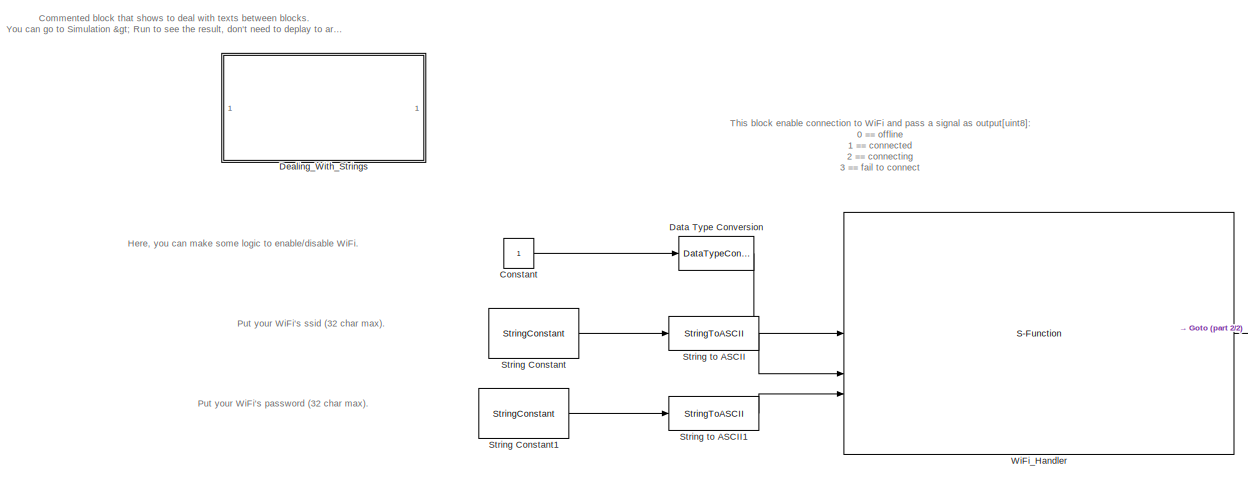
[diagram: root canvas - part 1/2, middle left region]
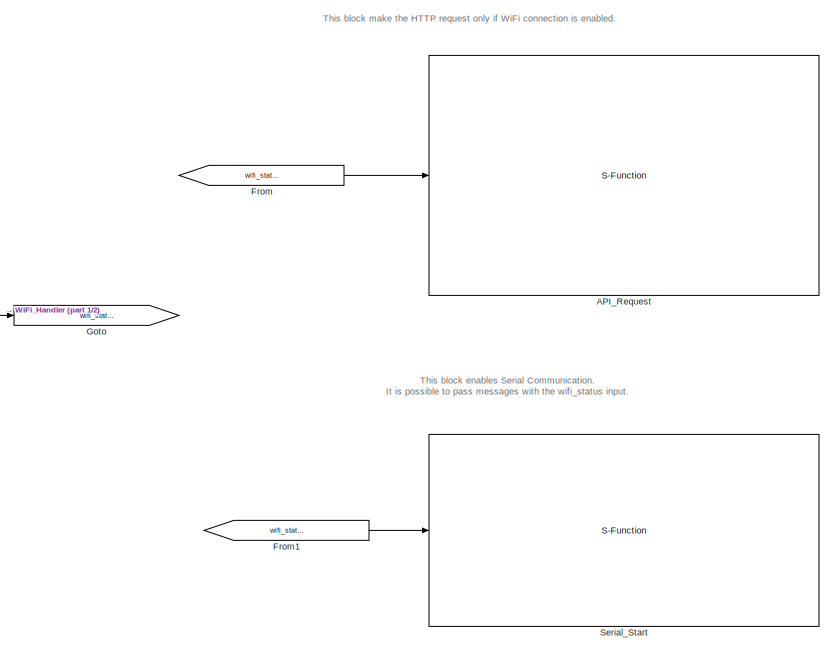
[diagram: root canvas - part 2/2, right side, full height]
MODEL slx_2858506cdff1
KIND model
CONFIG AbsTol = auto
CONFIG EnableMultiTasking = off
CONFIG FixedStep = 0.005
CONFIG MaxStep = auto
CONFIG MinStep = auto
CONFIG RelTol = 1e-3
CONFIG SampleTimeConstraint = Unconstrained
CONFIG SolverName = FixedStepDiscrete
CONFIG StartTime = 0.0
CONFIG StopTime = 50
BLOCK [S-Function] API_Request
  CopyFcn = set_param(gcbh,'LinkStatus','none')
  EnableBusSupport = off
  FunctionName = block_http
  OpenFcn = sfunctionwizard(gcbh)
  SFcnIsStateOwnerBlock = off
  SFunctionDeploymentMode = off
  SFunctionModules = block_http_wrapper.cpp
BLOCK [Constant] Constant
BLOCK [DataTypeConversion] Data Type Conversion
  OutDataTypeStr = boolean
  RndMeth = Floor
  SaturateOnIntegerOverflow = off
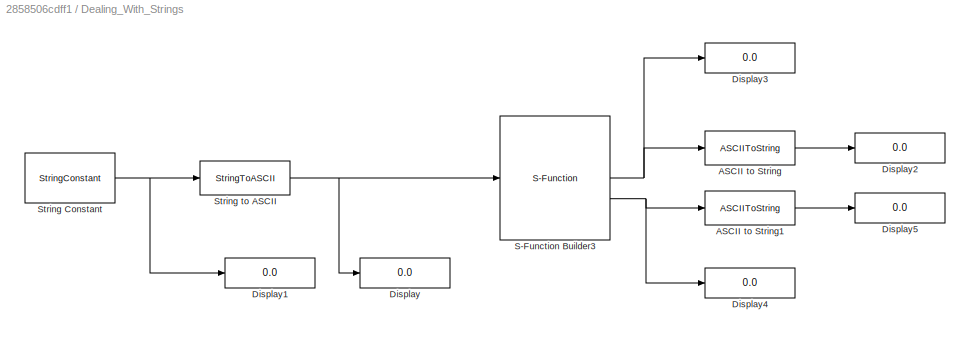
BLOCK [SubSystem] Dealing_With_Strings
  Commented = on
BLOCK [ASCIIToString] Dealing_With_Strings/ASCII to String
BLOCK [ASCIIToString] Dealing_With_Strings/ASCII to String1
BLOCK [Display] Dealing_With_Strings/Display
  Decimation = 1
BLOCK [Display] Dealing_With_Strings/Display1
  Decimation = 1
BLOCK [Display] Dealing_With_Strings/Display2
  Decimation = 1
BLOCK [Display] Dealing_With_Strings/Display3
  Decimation = 1
BLOCK [Display] Dealing_With_Strings/Display4
  Decimation = 1
BLOCK [Display] Dealing_With_Strings/Display5
  Decimation = 1
BLOCK [S-Function] Dealing_With_Strings/S-Function Builder3
  CopyFcn = set_param(gcbh,'LinkStatus','none')
  EnableBusSupport = off
  FunctionName = converter
  OpenFcn = sfunctionwizard(gcbh)
  SFcnIsStateOwnerBlock = off
  SFunctionDeploymentMode = off
  SFunctionModules = converter_wrapper.cpp
BLOCK [StringConstant] Dealing_With_Strings/String Constant
BLOCK [StringToASCII] Dealing_With_Strings/String to ASCII
  OutputVectorSize = 32
BLOCK [From] From
  GotoTag = wifi_status
BLOCK [From] From1
  GotoTag = wifi_status
BLOCK [Goto] Goto
  GotoTag = wifi_status
BLOCK [S-Function] Serial_Start
  CopyFcn = set_param(gcbh,'LinkStatus','none')
  EnableBusSupport = off
  FunctionName = block_serial
  OpenFcn = sfunctionwizard(gcbh)
  SFcnIsStateOwnerBlock = off
  SFunctionDeploymentMode = off
  SFunctionModules = block_serial_wrapper.cpp
BLOCK [StringConstant] String Constant
  String = "ssid"
BLOCK [StringConstant] String Constant1
  String = "password"
BLOCK [StringToASCII] String to ASCII
  OutputVectorSize = 32
BLOCK [StringToASCII] String to ASCII1
  OutputVectorSize = 32
BLOCK [S-Function] WiFi_Handler
  CopyFcn = set_param(gcbh,'LinkStatus','none')
  EnableBusSupport = off
  FunctionName = block_wifi
  OpenFcn = sfunctionwizard(gcbh)
  SFcnIsStateOwnerBlock = off
  SFunctionDeploymentMode = off
  SFunctionModules = block_wifi_wrapper.cpp
ANNOTATION (root): This block enables Serial Communication. It is possible to pass messages with the wifi_status input.
ANNOTATION (root): This block make the HTTP request only if WiFi connection is enabled.
ANNOTATION (root): Here, you can make some logic to enable/disable WiFi.
ANNOTATION (root): This block enable connection to WiFi and pass a signal as output[uint8]: 0 == offline 1 == connected 2 == connecting 3 == fail to connect
ANNOTATION (root): Commented block that shows to deal with texts between blocks. You can go to Simulation > Run to see the result, don't need to deplay to arduino.
ANNOTATION (root): Put your WiFi's password (32 char max).
ANNOTATION (root): Put your WiFi's ssid (32 char max).
LINE Constant:1 -> Data Type Conversion:1
LINE Data Type Conversion:1 -> WiFi_Handler:1
LINE Dealing_With_Strings/ASCII to String1:1 -> Dealing_With_Strings/Display5:1
LINE Dealing_With_Strings/ASCII to String:1 -> Dealing_With_Strings/Display2:1
NET Dealing_With_Strings/S-Function Builder3:1 -> Dealing_With_Strings/ASCII to String:1, Dealing_With_Strings/Display3:1
NET Dealing_With_Strings/S-Function Builder3:2 -> Dealing_With_Strings/ASCII to String1:1, Dealing_With_Strings/Display4:1
NET Dealing_With_Strings/String Constant:1 -> Dealing_With_Strings/Display1:1, Dealing_With_Strings/String to ASCII:1
NET Dealing_With_Strings/String to ASCII:1 -> Dealing_With_Strings/Display:1, Dealing_With_Strings/S-Function Builder3:1
LINE From1:1 -> Serial_Start:1
LINE From:1 -> API_Request:1
LINE String Constant1:1 -> String to ASCII1:1
LINE String Constant:1 -> String to ASCII:1
LINE String to ASCII1:1 -> WiFi_Handler:3
LINE String to ASCII:1 -> WiFi_Handler:2
LINE WiFi_Handler:1 -> Goto:1
note: NET lines group one-source signal fan-out (src -> all destinations, sorted); 1:1 wires keep LINE
